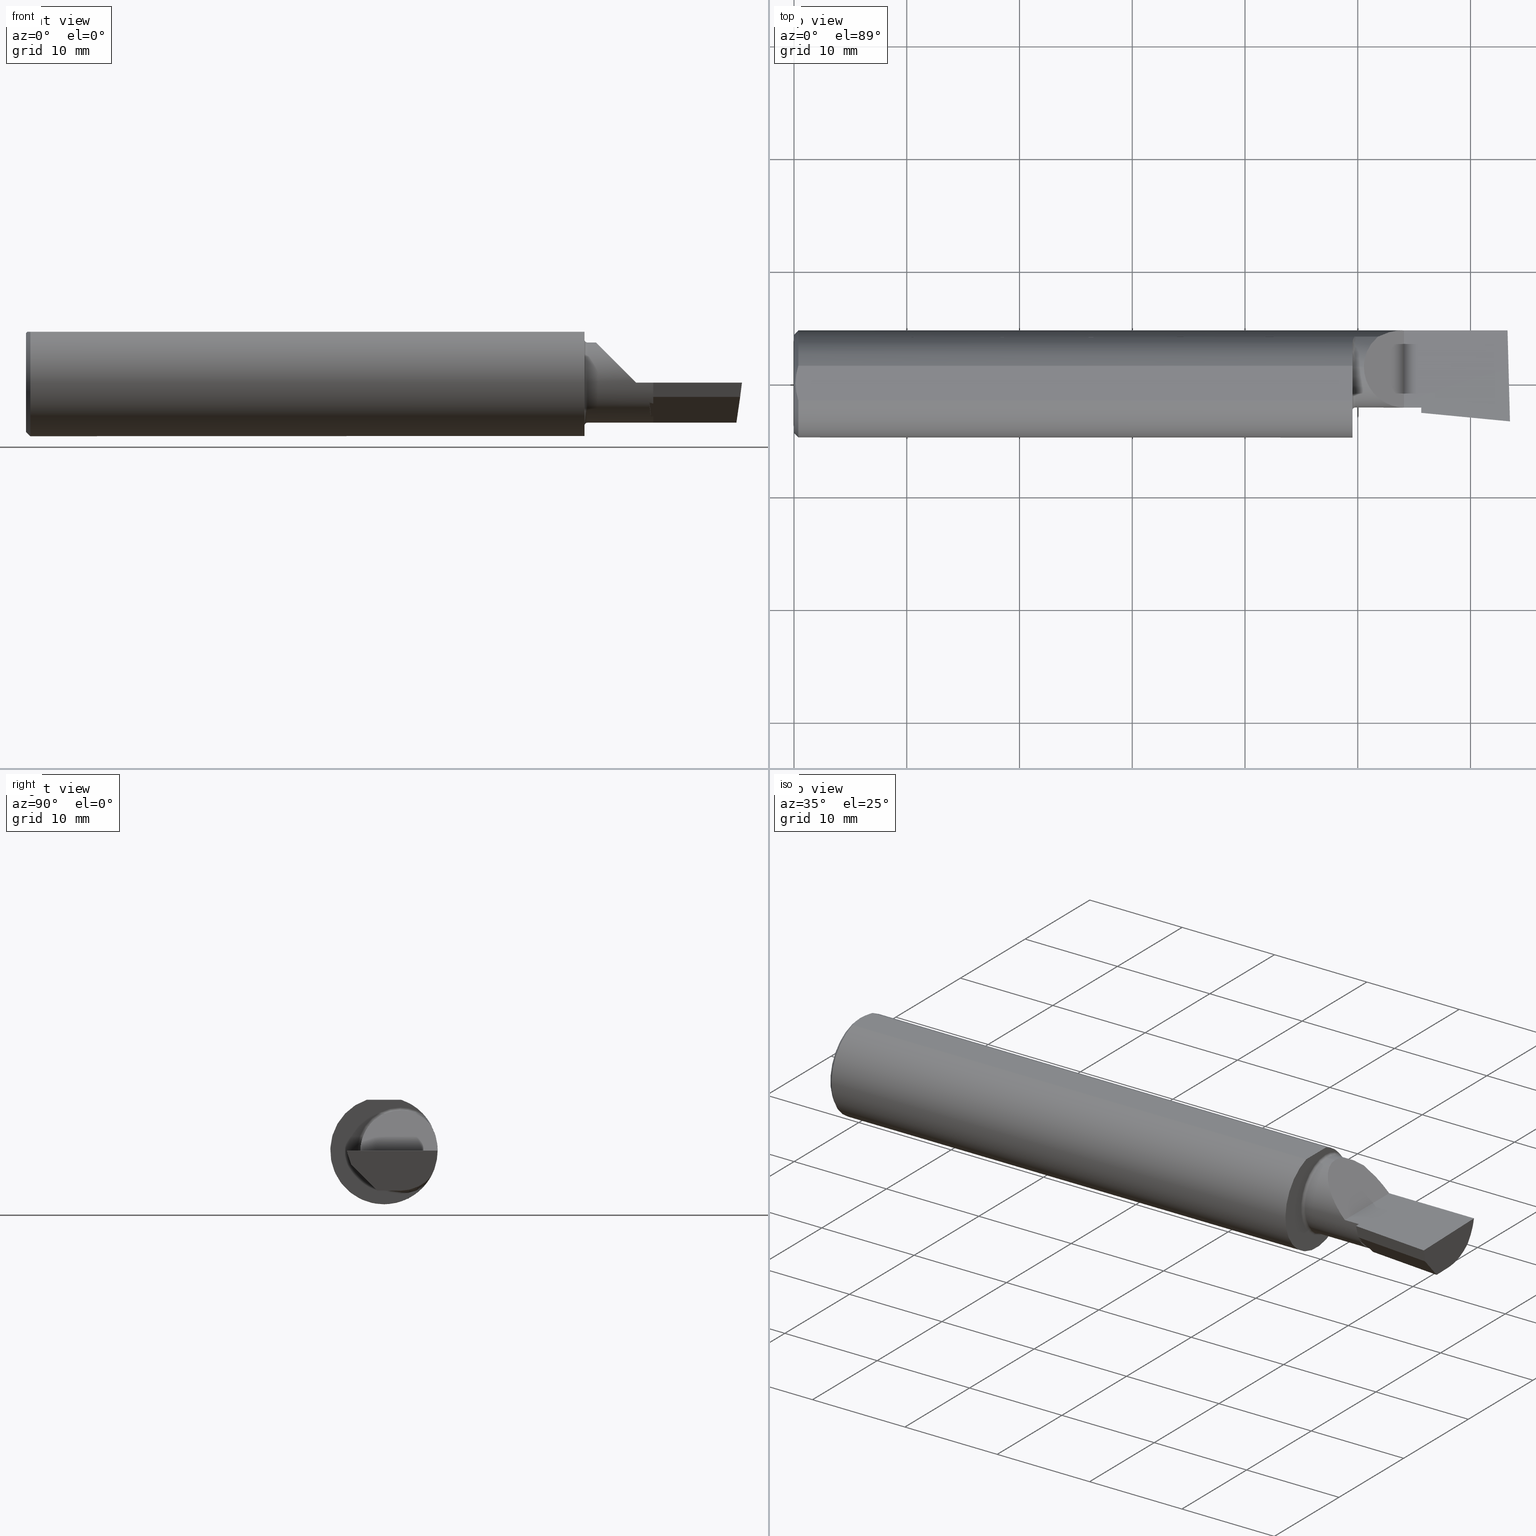
[diagram: canonical four-view strip — front | top / right | iso, engineering-drawing reading convention]
A machine part, canonical four-view strip (front | top / right | iso — engineering-drawing reading convention). The complete STEP part file that produces these views, byte-faithful:
ISO-10303-21;
HEADER;
FILE_DESCRIPTION (( 'STEP AP203' ),
    '1' );
FILE_NAME ('212091-LHB320500.STEP',
    '2024-08-27T20:28:41',
    ( '' ),
    ( '' ),
    'SwSTEP 2.0',
    'SolidWorks 2024',
    '' );
FILE_SCHEMA (( 'CONFIG_CONTROL_DESIGN' ));
ENDSEC;

DATA;
#1 = EDGE_CURVE ( 'NONE', #132, #534, #276, .T. ) ;
#2 = ORIENTED_EDGE ( 'NONE', *, *, #161, .F. ) ;
#3 = VECTOR ( 'NONE', #384, 39.37007874015748143 ) ;
#4 = PRODUCT_DEFINITION_FORMATION_WITH_SPECIFIED_SOURCE ( 'ANY', '', #110, .NOT_KNOWN. ) ;
#5 = CARTESIAN_POINT ( 'NONE',  ( 2.503195014871369306, -0.2499144076575001427, 1.702373413063153914E-16 ) ) ;
#6 = VERTEX_POINT ( 'NONE', #496 ) ;
#7 = CARTESIAN_POINT ( 'NONE',  ( 2.189999999999999947, 0.003938630626222059707, -0.1400500000000000078 ) ) ;
#8 = DIRECTION ( 'NONE',  ( -1.000000000000000000, -0.000000000000000000, -0.000000000000000000 ) ) ;
#9 = ORIENTED_EDGE ( 'NONE', *, *, #113, .T. ) ;
#10 = EDGE_CURVE ( 'NONE', #642, #12, #665, .T. ) ;
#11 = CARTESIAN_POINT ( 'NONE',  ( 2.177426863084049202, -0.06375161744379249928, -0.07025872252434531284 ) ) ;
#12 = VERTEX_POINT ( 'NONE', #395 ) ;
#13 = PLANE ( 'NONE',  #378 ) ;
#14 = AXIS2_PLACEMENT_3D ( 'NONE', #335, #610, #104 ) ;
#15 = LOCAL_TIME ( 13, 28, 41.00000000000000000, #618 ) ;
#16 = EDGE_LOOP ( 'NONE', ( #201, #483, #639, #33, #681 ) ) ;
#17 = VECTOR ( 'NONE', #690, 39.37007874015748854 ) ;
#18 = CARTESIAN_POINT ( 'NONE',  ( 0.01499999999999997863, -0.06039039658753695555, 0.1773499999999999799 ) ) ;
#19 = ADVANCED_FACE ( 'NONE', ( #438 ), #156, .F. ) ;
#20 = ORIENTED_EDGE ( 'NONE', *, *, #30, .T. ) ;
#21 = DIRECTION ( 'NONE',  ( -0.000000000000000000, 1.000000000000000000, -1.761988261316467526E-16 ) ) ;
#22 = EDGE_LOOP ( 'NONE', ( #77, #530, #256, #183, #250, #360 ) ) ;
#23 = CARTESIAN_POINT ( 'NONE',  ( 0.01499999999999999424, 0.000000000000000000, 0.000000000000000000 ) ) ;
#24 = DIRECTION ( 'NONE',  ( 0.000000000000000000, -0.7025528302622680021, 0.7116315905652844664 ) ) ;
#25 = ORIENTED_EDGE ( 'NONE', *, *, #720, .T. ) ;
#26 = FACE_OUTER_BOUND ( 'NONE', #134, .T. ) ;
#27 = CARTESIAN_POINT ( 'NONE',  ( 0.005896899252109526549, -0.02043863390046160924, 0.1773500000000000354 ) ) ;
#28 = VERTEX_POINT ( 'NONE', #47 ) ;
#29 = CARTESIAN_POINT ( 'NONE',  ( 1.960000000000000409, 0.1635956445993033692, 0.09130436773856144550 ) ) ;
#30 = EDGE_CURVE ( 'NONE', #642, #160, #669, .T. ) ;
#31 = CARTESIAN_POINT ( 'NONE',  ( 8.889029578031509911E-32, -0.08265000000000001512, 5.644462552563044730E-16 ) ) ;
#32 = CARTESIAN_POINT ( 'NONE',  ( 1.960000000000000409, 0.1635956445993032859, -0.09130436773856151489 ) ) ;
#33 = ORIENTED_EDGE ( 'NONE', *, *, #359, .T. ) ;
#34 = CALENDAR_DATE ( 2024, 27, 8 ) ;
#35 = CARTESIAN_POINT ( 'NONE',  ( 0.000000000000000000, 0.000000000000000000, 0.000000000000000000 ) ) ;
#36 = DIRECTION ( 'NONE',  ( 0.9953961983671787417, -0.09584575252022421721, -0.000000000000000000 ) ) ;
#37 = ORIENTED_EDGE ( 'NONE', *, *, #562, .T. ) ;
#38 = CLOSED_SHELL ( 'NONE', ( #507, #211, #725, #464, #708, #626, #88, #135, #361, #324, #218, #122, #490, #748, #48, #344, #198, #19, #683, #555, #684 ) ) ;
#39 = LINE ( 'NONE', #273, #244 ) ;
#40 = CARTESIAN_POINT ( 'NONE',  ( 2.478395815296170479, 0.05682123813157435865, -0.1400500000000000078 ) ) ;
#41 = DIRECTION ( 'NONE',  ( -1.000000000000000000, -0.000000000000000000, -0.000000000000000000 ) ) ;
#42 = VERTEX_POINT ( 'NONE', #753 ) ;
#43 = CALENDAR_DATE ( 2024, 27, 8 ) ;
#44 = VERTEX_POINT ( 'NONE', #166 ) ;
#45 = CARTESIAN_POINT ( 'NONE',  ( 0.005000000000000064289, 2.941982644279459108E-17, 0.1773499999999999799 ) ) ;
#46 = CARTESIAN_POINT ( 'NONE',  ( 1.960000000000000409, 0.1635956445993032859, -0.09130436773856151489 ) ) ;
#47 = CARTESIAN_POINT ( 'NONE',  ( 1.989949999999998775, 0.05739999999999997882, 0.1400500000000000078 ) ) ;
#48 = ADVANCED_FACE ( 'NONE', ( #280 ), #558, .F. ) ;
#49 = DATE_AND_TIME ( #43, #332 ) ;
#50 = CARTESIAN_POINT ( 'NONE',  ( 2.180141567848909112, -0.03555833050537432483, -0.1073493499420050956 ) ) ;
#51 = CONICAL_SURFACE ( 'NONE', #185, 0.1873499999999999888, 0.7853981633974602694 ) ;
#52 = AXIS2_PLACEMENT_3D ( 'NONE', #155, #567, #163 ) ;
#53 = VERTEX_POINT ( 'NONE', #262 ) ;
#54 = CARTESIAN_POINT ( 'NONE',  ( 2.187448432732871151, -0.01683441884804644240, -0.1187596472685085724 ) ) ;
#55 = CARTESIAN_POINT ( 'NONE',  ( 2.500000000000000000, -0.2500000000000000555, 1.707404996040164512E-16 ) ) ;
#56 = ORIENTED_EDGE ( 'NONE', *, *, #579, .T. ) ;
#57 = CALENDAR_DATE ( 2024, 27, 8 ) ;
#58 = AXIS2_PLACEMENT_3D ( 'NONE', #154, #504, #84 ) ;
#59 = CARTESIAN_POINT ( 'NONE',  ( 2.189999999999999947, -0.01748911258856174558, -0.1183453561222312378 ) ) ;
#60 = APPROVAL_PERSON_ORGANIZATION ( #609, #715, #666 ) ;
#61 = CARTESIAN_POINT ( 'NONE',  ( 2.487920531740588803, -0.09940957783652945579, -0.09495384310856869181 ) ) ;
#62 = EDGE_CURVE ( 'NONE', #12, #53, #693, .T. ) ;
#63 = ORIENTED_EDGE ( 'NONE', *, *, #637, .T. ) ;
#64 = EDGE_CURVE ( 'NONE', #563, #366, #629, .T. ) ;
#65 = CARTESIAN_POINT ( 'NONE',  ( 2.189999999999999947, 0.05739999999999996494, -0.1400500000000000078 ) ) ;
#66 = CARTESIAN_POINT ( 'NONE',  ( 2.500000000000000000, 0.05739999999999996494, -0.1400500000000000078 ) ) ;
#67 = ORIENTED_EDGE ( 'NONE', *, *, #430, .T. ) ;
#68 = CC_DESIGN_PERSON_AND_ORGANIZATION_ASSIGNMENT ( #698, #707, ( #423 ) ) ;
#69 = DIRECTION ( 'NONE',  ( -1.000000000000000000, -0.000000000000000000, -0.000000000000000000 ) ) ;
#70 = APPLICATION_CONTEXT ( 'configuration controlled 3d designs of mechanical parts and assemblies' ) ;
#71 = ORIENTED_EDGE ( 'NONE', *, *, #98, .F. ) ;
#72 = EDGE_CURVE ( 'NONE', #160, #172, #756, .T. ) ;
#73 =( BOUNDED_CURVE ( )  B_SPLINE_CURVE ( 3, ( #141, #372, #533, #314 ),
 .UNSPECIFIED., .F., .T. ) 
 B_SPLINE_CURVE_WITH_KNOTS ( ( 4, 4 ),
 ( 6.060671081087593670, 6.921325714778722826 ),
 .UNSPECIFIED. ) 
 CURVE ( )  GEOMETRIC_REPRESENTATION_ITEM ( )  RATIONAL_B_SPLINE_CURVE ( ( 1.000000000000000000, 0.9392195014330942948, 0.9392195014330942948, 1.000000000000000000 ) ) 
 REPRESENTATION_ITEM ( '' )  );
#74 = DIRECTION ( 'NONE',  ( 0.000000000000000000, 0.000000000000000000, 1.000000000000000000 ) ) ;
#75 = AXIS2_PLACEMENT_3D ( 'NONE', #549, #491, #387 ) ;
#76 = AXIS2_PLACEMENT_3D ( 'NONE', #202, #428, #358 ) ;
#77 = ORIENTED_EDGE ( 'NONE', *, *, #585, .T. ) ;
#78 = DIRECTION ( 'NONE',  ( -1.000000000000000000, -0.000000000000000000, -0.000000000000000000 ) ) ;
#79 = ORIENTED_EDGE ( 'NONE', *, *, #431, .T. ) ;
#80 = LINE ( 'NONE', #263, #682 ) ;
#81 = CARTESIAN_POINT ( 'NONE',  ( 0.01499999999999999424, 0.06039039658753699719, 0.1773499999999999799 ) ) ;
#82 = VERTEX_POINT ( 'NONE', #404 ) ;
#83 = DIRECTION ( 'NONE',  ( 1.000000000000000000, 0.000000000000000000, 0.000000000000000000 ) ) ;
#84 = DIRECTION ( 'NONE',  ( 0.000000000000000000, 0.000000000000000000, 1.000000000000000000 ) ) ;
#85 = AXIS2_PLACEMENT_3D ( 'NONE', #112, #705, #520 ) ;
#86 = ORIENTED_EDGE ( 'NONE', *, *, #64, .F. ) ;
#87 = VECTOR ( 'NONE', #126, 39.37007874015748143 ) ;
#88 = ADVANCED_FACE ( 'NONE', ( #232 ), #341, .F. ) ;
#89 = DIRECTION ( 'NONE',  ( 0.9927123040216839778, 0.02659410830637959702, -0.1175373763844856645 ) ) ;
#90 = LINE ( 'NONE', #31, #305 ) ;
#91 = B_SPLINE_CURVE_WITH_KNOTS ( 'NONE', 3,
 ( #32, #208, #224, #96, #100, #336, #719, #741, #429, #680, #322, #663 ),
 .UNSPECIFIED., .F., .F.,
 ( 4, 2, 2, 2, 2, 4 ),
 ( 1.968964099585697359E-07, 7.414172666647628012E-05, 0.0001480865569229939868, 0.0002959762174360398086, 0.0005917555384621325364, 0.001183314180514314848 ),
 .UNSPECIFIED. ) ;
#92 = ORIENTED_EDGE ( 'NONE', *, *, #637, .F. ) ;
#93 = PRODUCT_RELATED_PRODUCT_CATEGORY ( 'detail', '', ( #110 ) ) ;
#94 = LENGTH_MEASURE_WITH_UNIT ( LENGTH_MEASURE( 0.02539999999999999897 ), #214 );
#95 = FACE_OUTER_BOUND ( 'NONE', #101, .T. ) ;
#96 = CARTESIAN_POINT ( 'NONE',  ( 1.956977885846546750, 0.1625039841807087992, -0.09323648621225517907 ) ) ;
#97 = DIRECTION ( 'NONE',  ( -1.000000000000000000, 0.000000000000000000, -0.000000000000000000 ) ) ;
#98 = EDGE_CURVE ( 'NONE', #366, #82, #291, .T. ) ;
#99 = DIRECTION ( 'NONE',  ( -1.000000000000000000, -0.000000000000000000, -0.000000000000000000 ) ) ;
#100 = CARTESIAN_POINT ( 'NONE',  ( 1.956503643436637185, 0.1620795007490430650, -0.09397341491037281003 ) ) ;
#101 = EDGE_LOOP ( 'NONE', ( #124, #405, #67, #463 ) ) ;
#102 = CC_DESIGN_APPROVAL ( #754, ( #423 ) ) ;
#103 = EDGE_LOOP ( 'NONE', ( #696, #420, #471, #337, #578, #190 ) ) ;
#104 = DIRECTION ( 'NONE',  ( 0.000000000000000000, -1.000000000000000000, 1.761988261316467526E-16 ) ) ;
#105 = CARTESIAN_POINT ( 'NONE',  ( 0.000000000000000000, 0.000000000000000000, 0.000000000000000000 ) ) ;
#106 = ORIENTED_EDGE ( 'NONE', *, *, #697, .F. ) ;
#107 = APPROVAL_ROLE ( '' ) ;
#108 = VERTEX_POINT ( 'NONE', #700 ) ;
#109 = APPROVAL_STATUS ( 'not_yet_approved' ) ;
#110 = PRODUCT ( '212091-LHB320500', '212091-LHB320500', '', ( #743 ) ) ;
#111 = B_SPLINE_CURVE_WITH_KNOTS ( 'NONE', 3,
 ( #575, #229, #182, #171, #523, #297, #239, #289, #529, #462, #453, #467 ),
 .UNSPECIFIED., .F., .F.,
 ( 4, 2, 2, 2, 2, 4 ),
 ( 0.0009392928737449028100, 0.001524303482983961492, 0.001816808787603491158, 0.001963061439913260219, 0.002036187766068145184, 0.002109314092223030148 ),
 .UNSPECIFIED. ) ;
#112 = CARTESIAN_POINT ( 'NONE',  ( 1.960000000000000409, 0.05739999999999999963, -0.1500500000000000445 ) ) ;
#113 = EDGE_CURVE ( 'NONE', #651, #664, #111, .T. ) ;
#114 = CIRCLE ( 'NONE', #535, 0.1723499999999996424 ) ;
#115 = AXIS2_PLACEMENT_3D ( 'NONE', #561, #41, #745 ) ;
#116 = LINE ( 'NONE', #119, #235 ) ;
#117 = ORIENTED_EDGE ( 'NONE', *, *, #62, .T. ) ;
#118 = PERSON_AND_ORGANIZATION ( #699, #574 ) ;
#119 = CARTESIAN_POINT ( 'NONE',  ( 1.950000000000000178, 0.2373500000000000332, 0.1773499999999999521 ) ) ;
#120 = CARTESIAN_POINT ( 'NONE',  ( 2.184805551184139993, -0.01617630990044777867, -0.1191684915675323836 ) ) ;
#121 = CARTESIAN_POINT ( 'NONE',  ( 2.484210015596427734, 0.1792580844883771285, -0.06324101202936127653 ) ) ;
#122 = ADVANCED_FACE ( 'NONE', ( #645 ), #350, .F. ) ;
#123 = LINE ( 'NONE', #5, #400 ) ;
#124 = ORIENTED_EDGE ( 'NONE', *, *, #418, .F. ) ;
#125 = AXIS2_PLACEMENT_3D ( 'NONE', #604, #89, #644 ) ;
#126 = DIRECTION ( 'NONE',  ( 1.000000000000000000, 0.000000000000000000, 0.000000000000000000 ) ) ;
#127 = CARTESIAN_POINT ( 'NONE',  ( 1.950000000000000178, 0.05739999999999997882, 0.1500500000000000445 ) ) ;
#128 = CC_DESIGN_PERSON_AND_ORGANIZATION_ASSIGNMENT ( #702, #408, ( #4 ) ) ;
#129 = ORIENTED_EDGE ( 'NONE', *, *, #640, .T. ) ;
#130 =( BOUNDED_CURVE ( )  B_SPLINE_CURVE ( 3, ( #362, #241, #647, #252 ),
 .UNSPECIFIED., .F., .T. ) 
 B_SPLINE_CURVE_WITH_KNOTS ( ( 4, 4 ),
 ( 5.422530673488455299, 6.283185307179586232 ),
 .UNSPECIFIED. ) 
 CURVE ( )  GEOMETRIC_REPRESENTATION_ITEM ( )  RATIONAL_B_SPLINE_CURVE ( ( 1.000000000000000000, 0.9392195014330939618, 0.9392195014330939618, 1.000000000000000000 ) ) 
 REPRESENTATION_ITEM ( '' )  );
#131 = DIRECTION ( 'NONE',  ( -1.000000000000000000, -0.000000000000000000, -0.000000000000000000 ) ) ;
#132 = VERTEX_POINT ( 'NONE', #178 ) ;
#133 = DIRECTION ( 'NONE',  ( 0.09140971883575738088, 0.9493262270931225322, 0.3007057995042746179 ) ) ;
#134 = EDGE_LOOP ( 'NONE', ( #460, #253, #653, #20, #225, #363, #308, #746, #586, #9, #506, #678, #401 ) ) ;
#135 = ADVANCED_FACE ( 'NONE', ( #689 ), #516, .T. ) ;
#136 = DIRECTION ( 'NONE',  ( 0.000000000000000000, -0.7025528302622680021, 0.7116315905652844664 ) ) ;
#137 = VECTOR ( 'NONE', #419, 39.37007874015748854 ) ;
#138 = AXIS2_PLACEMENT_3D ( 'NONE', #140, #251, #466 ) ;
#139 = ORIENTED_EDGE ( 'NONE', *, *, #72, .F. ) ;
#140 = CARTESIAN_POINT ( 'NONE',  ( 1.960000000000000409, 0.05739999999999997882, 0.000000000000000000 ) ) ;
#141 = CARTESIAN_POINT ( 'NONE',  ( 2.478380310647189777, 0.05739999999999996494, -0.1400500000000000078 ) ) ;
#142 = VERTEX_POINT ( 'NONE', #127 ) ;
#143 = DIRECTION ( 'NONE',  ( 0.000000000000000000, 0.000000000000000000, 1.000000000000000000 ) ) ;
#144 = DIRECTION ( 'NONE',  ( -1.000000000000000000, -0.000000000000000000, -0.000000000000000000 ) ) ;
#145 = EDGE_CURVE ( 'NONE', #591, #304, #703, .T. ) ;
#146 = ORIENTED_EDGE ( 'NONE', *, *, #614, .T. ) ;
#147 = CARTESIAN_POINT ( 'NONE',  ( 1.950000000000000178, 0.1383256097560974507, -0.1263568288047932642 ) ) ;
#148 = CARTESIAN_POINT ( 'NONE',  ( 0.01499999999999999424, 0.000000000000000000, -0.1873499999999999888 ) ) ;
#149 = DIRECTION ( 'NONE',  ( 0.000000000000000000, -0.7025528302622680021, 0.7116315905652844664 ) ) ;
#150 = AXIS2_PLACEMENT_3D ( 'NONE', #426, #416, #24 ) ;
#151 = DIRECTION ( 'NONE',  ( 0.000000000000000000, -1.438723400918613551E-16, -1.000000000000000000 ) ) ;
#152 =( GEOMETRIC_REPRESENTATION_CONTEXT ( 3 ) GLOBAL_UNCERTAINTY_ASSIGNED_CONTEXT ( ( #473 ) ) GLOBAL_UNIT_ASSIGNED_CONTEXT ( ( #444, #386, #267 ) ) REPRESENTATION_CONTEXT ( 'NONE', 'WORKASPACE' ) );
#153 = CIRCLE ( 'NONE', #576, 0.1500500000000000445 ) ;
#154 = CARTESIAN_POINT ( 'NONE',  ( 0.000000000000000000, 0.05739999999999997882, 0.000000000000000000 ) ) ;
#155 = CARTESIAN_POINT ( 'NONE',  ( 1.960000000000000409, 0.05739999999999997882, 0.000000000000000000 ) ) ;
#156 = PLANE ( 'NONE',  #654 ) ;
#157 = EDGE_CURVE ( 'NONE', #6, #563, #123, .T. ) ;
#158 = PERSON_AND_ORGANIZATION ( #699, #574 ) ;
#159 = CARTESIAN_POINT ( 'NONE',  ( 2.129999999999999893, -0.2500000000000000555, 2.290089514405551589E-16 ) ) ;
#160 = VERTEX_POINT ( 'NONE', #455 ) ;
#161 = EDGE_CURVE ( 'NONE', #304, #731, #309, .T. ) ;
#162 = LINE ( 'NONE', #40, #3 ) ;
#163 = DIRECTION ( 'NONE',  ( 0.000000000000000000, 0.000000000000000000, 1.000000000000000000 ) ) ;
#164 = DIRECTION ( 'NONE',  ( -1.000000000000000000, -0.000000000000000000, -0.000000000000000000 ) ) ;
#165 = APPLICATION_PROTOCOL_DEFINITION ( 'international standard', 'config_control_design', 1994, #167 ) ;
#166 = CARTESIAN_POINT ( 'NONE',  ( 2.129999999999999893, 0.1873499999999998222, 2.290089514405551589E-16 ) ) ;
#167 = APPLICATION_CONTEXT ( 'configuration controlled 3d designs of mechanical parts and assemblies' ) ;
#168 = CARTESIAN_POINT ( 'NONE',  ( 0.01499999999999999424, 0.06039039658753699719, 0.1773499999999999799 ) ) ;
#169 = DIRECTION ( 'NONE',  ( -1.000000000000000000, -0.000000000000000000, -0.000000000000000000 ) ) ;
#170 = EDGE_CURVE ( 'NONE', #160, #415, #116, .T. ) ;
#171 = CARTESIAN_POINT ( 'NONE',  ( 1.952291668372491351, 0.1548472237252446204, 0.1055305370847125779 ) ) ;
#172 = VERTEX_POINT ( 'NONE', #18 ) ;
#173 = VECTOR ( 'NONE', #531, 39.37007874015748143 ) ;
#174 = CC_DESIGN_APPROVAL ( #715, ( #4 ) ) ;
#175 = DIRECTION ( 'NONE',  ( 0.000000000000000000, 0.000000000000000000, -1.000000000000000000 ) ) ;
#176 = EDGE_LOOP ( 'NONE', ( #248, #425, #146, #624, #492, #412 ) ) ;
#177 = APPROVAL_DATE_TIME ( #402, #754 ) ;
#178 = CARTESIAN_POINT ( 'NONE',  ( 2.481306893948618697, 0.1635956445993030917, -0.09130436773856172306 ) ) ;
#179 = ORIENTED_EDGE ( 'NONE', *, *, #189, .F. ) ;
#180 = PERSON_AND_ORGANIZATION_ROLE ( 'creator' ) ;
#181 = CARTESIAN_POINT ( 'NONE',  ( 2.478380310647189777, 0.05739999999999996494, -0.1400500000000000078 ) ) ;
#182 = CARTESIAN_POINT ( 'NONE',  ( 1.950530357231195833, 0.1482623167742069259, 0.1147852156680472524 ) ) ;
#183 = ORIENTED_EDGE ( 'NONE', *, *, #98, .T. ) ;
#184 = VECTOR ( 'NONE', #8, 39.37007874015748143 ) ;
#185 = AXIS2_PLACEMENT_3D ( 'NONE', #23, #83, #317 ) ;
#186 = DIRECTION ( 'NONE',  ( 1.000000000000000000, 0.000000000000000000, 0.000000000000000000 ) ) ;
#187 = ORIENTED_EDGE ( 'NONE', *, *, #599, .F. ) ;
#188 = DIRECTION ( 'NONE',  ( 0.000000000000000000, 0.000000000000000000, 1.000000000000000000 ) ) ;
#189 = EDGE_CURVE ( 'NONE', #664, #509, #592, .T. ) ;
#190 = ORIENTED_EDGE ( 'NONE', *, *, #449, .T. ) ;
#191 = LINE ( 'NONE', #652, #711 ) ;
#192 = ORIENTED_EDGE ( 'NONE', *, *, #430, .F. ) ;
#193 = CYLINDRICAL_SURFACE ( 'NONE', #526, 0.1400500000000000078 ) ;
#194 = CARTESIAN_POINT ( 'NONE',  ( 2.075000000000000178, 0.1635956445993030917, 0.09130436773856172306 ) ) ;
#195 = LOCAL_TIME ( 13, 28, 41.00000000000000000, #293 ) ;
#196 = VERTEX_POINT ( 'NONE', #722 ) ;
#197 = FACE_OUTER_BOUND ( 'NONE', #16, .T. ) ;
#198 = ADVANCED_FACE ( 'NONE', ( #310 ), #459, .F. ) ;
#199 = EDGE_CURVE ( 'NONE', #648, #132, #73, .T. ) ;
#200 = PLANE ( 'NONE',  #150 ) ;
#201 = ORIENTED_EDGE ( 'NONE', *, *, #315, .F. ) ;
#202 = CARTESIAN_POINT ( 'NONE',  ( 1.960000000000000409, 0.05739999999999997882, 0.000000000000000000 ) ) ;
#203 = CC_DESIGN_PERSON_AND_ORGANIZATION_ASSIGNMENT ( #628, #180, ( #4 ) ) ;
#204 = CARTESIAN_POINT ( 'NONE',  ( 2.097861799102314961, 0.1873499999999999055, 0.03213820089768522348 ) ) ;
#205 = EDGE_LOOP ( 'NONE', ( #323, #477, #63, #617 ) ) ;
#206 = CYLINDRICAL_SURFACE ( 'NONE', #515, 0.1873499999999999888 ) ;
#207 = DIRECTION ( 'NONE',  ( 0.000000000000000000, 0.000000000000000000, 1.000000000000000000 ) ) ;
#208 = CARTESIAN_POINT ( 'NONE',  ( 1.959014641741962715, 0.1635956445993033692, -0.09130436773856129284 ) ) ;
#209 = VECTOR ( 'NONE', #668, 39.37007874015748143 ) ;
#210 = ORIENTED_EDGE ( 'NONE', *, *, #371, .F. ) ;
#211 = ADVANCED_FACE ( 'NONE', ( #486 ), #636, .F. ) ;
#212 = CIRCLE ( 'NONE', #655, 0.1500500000000000445 ) ;
#213 = AXIS2_PLACEMENT_3D ( 'NONE', #55, #411, #228 ) ;
#214 =( LENGTH_UNIT ( ) NAMED_UNIT ( * ) SI_UNIT ( $, .METRE. ) );
#215 = CARTESIAN_POINT ( 'NONE',  ( 2.047960609410351296, -0.08264999999999984859, 0.08203939058964823672 ) ) ;
#216 = CARTESIAN_POINT ( 'NONE',  ( 2.500000000000000444, -0.1306500000000002382, 5.634436486932542518E-16 ) ) ;
#217 = ORIENTED_EDGE ( 'NONE', *, *, #627, .F. ) ;
#218 = ADVANCED_FACE ( 'NONE', ( #727 ), #200, .F. ) ;
#219 = DIRECTION ( 'NONE',  ( 0.000000000000000000, 0.000000000000000000, -1.000000000000000000 ) ) ;
#220 = LINE ( 'NONE', #445, #394 ) ;
#221 = CARTESIAN_POINT ( 'NONE',  ( 1.950000000000000178, 0.05739999999999997882, 0.000000000000000000 ) ) ;
#222 = DIRECTION ( 'NONE',  ( 1.000000000000000000, 0.000000000000000000, 0.000000000000000000 ) ) ;
#223 = PLANE ( 'NONE',  #75 ) ;
#224 = CARTESIAN_POINT ( 'NONE',  ( 1.958200855161538634, 0.1632467142437138141, -0.09192985110639159685 ) ) ;
#225 = ORIENTED_EDGE ( 'NONE', *, *, #72, .T. ) ;
#226 = CONICAL_SURFACE ( 'NONE', #236, 0.1873499999999999888, 0.7853981633974602694 ) ;
#227 = CARTESIAN_POINT ( 'NONE',  ( 0.000000000000000000, 0.000000000000000000, 0.000000000000000000 ) ) ;
#228 = DIRECTION ( 'NONE',  ( -1.000000000000000000, 0.000000000000000000, 1.574823022609152926E-16 ) ) ;
#229 = CARTESIAN_POINT ( 'NONE',  ( 1.950000000000000844, 0.1434410963562315899, 0.1207567927018308035 ) ) ;
#230 = EDGE_LOOP ( 'NONE', ( #389, #56, #319, #233, #660, #427, #240, #192, #385, #106 ) ) ;
#231 = SECURITY_CLASSIFICATION_LEVEL ( 'unclassified' ) ;
#232 = FACE_OUTER_BOUND ( 'NONE', #103, .T. ) ;
#233 = ORIENTED_EDGE ( 'NONE', *, *, #145, .T. ) ;
#234 = EDGE_CURVE ( 'NONE', #391, #172, #724, .T. ) ;
#235 = VECTOR ( 'NONE', #584, 39.37007874015748143 ) ;
#236 = AXIS2_PLACEMENT_3D ( 'NONE', #448, #222, #219 ) ;
#237 = ORIENTED_EDGE ( 'NONE', *, *, #547, .F. ) ;
#238 = CARTESIAN_POINT ( 'NONE',  ( 2.481306893948618697, 0.1635956445993030917, -0.09130436773856172306 ) ) ;
#239 = CARTESIAN_POINT ( 'NONE',  ( 1.955270962286581815, 0.1607994114084985160, 0.09615890281982612808 ) ) ;
#240 = ORIENTED_EDGE ( 'NONE', *, *, #367, .F. ) ;
#241 = CARTESIAN_POINT ( 'NONE',  ( 2.007250049735287867, 0.1365595166907238311, 0.1227499502647106666 ) ) ;
#242 = EDGE_LOOP ( 'NONE', ( #139, #646, #447, #487, #457 ) ) ;
#243 = AXIS2_PLACEMENT_3D ( 'NONE', #590, #69, #717 ) ;
#244 = VECTOR ( 'NONE', #572, 39.37007874015748143 ) ;
#245 = EDGE_CURVE ( 'NONE', #407, #742, #613, .T. ) ;
#246 = CARTESIAN_POINT ( 'NONE',  ( 2.175518747519191720, -0.08356815525963089131, -0.04999999999999982236 ) ) ;
#247 = AXIS2_PLACEMENT_3D ( 'NONE', #539, #368, #476 ) ;
#248 = ORIENTED_EDGE ( 'NONE', *, *, #10, .T. ) ;
#249 = CARTESIAN_POINT ( 'NONE',  ( 1.950000000000000178, 0.000000000000000000, 0.000000000000000000 ) ) ;
#250 = ORIENTED_EDGE ( 'NONE', *, *, #348, .T. ) ;
#251 = DIRECTION ( 'NONE',  ( -1.000000000000000000, -0.000000000000000000, -0.000000000000000000 ) ) ;
#252 = CARTESIAN_POINT ( 'NONE',  ( 1.989949999999998775, 0.05739999999999997882, 0.1400500000000000078 ) ) ;
#253 = ORIENTED_EDGE ( 'NONE', *, *, #1, .T. ) ;
#254 = LINE ( 'NONE', #320, #87 ) ;
#255 = CARTESIAN_POINT ( 'NONE',  ( 0.005000000000000064289, 2.941982644279459108E-17, 0.1773499999999999799 ) ) ;
#256 = ORIENTED_EDGE ( 'NONE', *, *, #64, .T. ) ;
#257 =( BOUNDED_CURVE ( )  B_SPLINE_CURVE ( 3, ( #349, #54, #120, #352 ),
 .UNSPECIFIED., .F., .T. ) 
 B_SPLINE_CURVE_WITH_KNOTS ( ( 4, 4 ),
 ( 3.369220829256468708, 3.385816822084442013 ),
 .UNSPECIFIED. ) 
 CURVE ( )  GEOMETRIC_REPRESENTATION_ITEM ( )  RATIONAL_B_SPLINE_CURVE ( ( 1.000000000000000000, 0.9999770478835389165, 0.9999770478835389165, 1.000000000000000000 ) ) 
 REPRESENTATION_ITEM ( '' )  );
#258 = CC_DESIGN_PERSON_AND_ORGANIZATION_ASSIGNMENT ( #569, #564, ( #538 ) ) ;
#259 = DIMENSIONAL_EXPONENTS ( 1.000000000000000000, 0.000000000000000000, 0.000000000000000000, 0.000000000000000000, 0.000000000000000000, 0.000000000000000000, 0.000000000000000000 ) ;
#260 = CARTESIAN_POINT ( 'NONE',  ( 0.000000000000000000, 0.000000000000000000, 0.000000000000000000 ) ) ;
#261 = FACE_OUTER_BOUND ( 'NONE', #205, .T. ) ;
#262 = CARTESIAN_POINT ( 'NONE',  ( 1.960000000000000409, 0.05739999999999999963, -0.1400500000000000633 ) ) ;
#263 = CARTESIAN_POINT ( 'NONE',  ( 0.000000000000000000, 0.05739999999999997882, 0.1400500000000000078 ) ) ;
#264 = LINE ( 'NONE', #441, #594 ) ;
#265 = PLANE ( 'NONE',  #738 ) ;
#266 = ORIENTED_EDGE ( 'NONE', *, *, #614, .F. ) ;
#267 =( NAMED_UNIT ( * ) SI_UNIT ( $, .STERADIAN. ) SOLID_ANGLE_UNIT ( ) );
#268 = CARTESIAN_POINT ( 'NONE',  ( 1.989949999999998775, -0.02463939058964791096, 0.1400500000000000356 ) ) ;
#269 = LINE ( 'NONE', #622, #270 ) ;
#270 = VECTOR ( 'NONE', #495, 39.37007874015748143 ) ;
#271 = VERTEX_POINT ( 'NONE', #542 ) ;
#272 = APPROVAL_PERSON_ORGANIZATION ( #118, #754, #454 ) ;
#273 = CARTESIAN_POINT ( 'NONE',  ( 0.000000000000000000, 0.06039039658753699719, 0.1773499999999999799 ) ) ;
#274 = CARTESIAN_POINT ( 'NONE',  ( 2.511386526799095353, -0.1317463978277607084, 1.689473231489393182E-16 ) ) ;
#275 = DIRECTION ( 'NONE',  ( 1.000000000000000000, 0.000000000000000000, 0.000000000000000000 ) ) ;
#276 = LINE ( 'NONE', #451, #537 ) ;
#277 = DATE_TIME_ROLE ( 'creation_date' ) ;
#278 = ORIENTED_EDGE ( 'NONE', *, *, #517, .T. ) ;
#279 = CARTESIAN_POINT ( 'NONE',  ( 1.950000000000000178, 0.05739999999999997882, 0.000000000000000000 ) ) ;
#280 = FACE_OUTER_BOUND ( 'NONE', #242, .T. ) ;
#281 = EDGE_CURVE ( 'NONE', #415, #651, #307, .T. ) ;
#282 = APPROVAL_STATUS ( 'not_yet_approved' ) ;
#283 = CARTESIAN_POINT ( 'NONE',  ( 2.178560885666600999, -0.05197434262614716166, -0.09056703218288446322 ) ) ;
#284 = AXIS2_PLACEMENT_3D ( 'NONE', #327, #432, #686 ) ;
#285 = VECTOR ( 'NONE', #388, 39.37007874015748143 ) ;
#286 = CARTESIAN_POINT ( 'NONE',  ( 2.189999999999999947, -0.1108003950587631986, 0.000000000000000000 ) ) ;
#287 = DATE_AND_TIME ( #527, #195 ) ;
#288 = EDGE_CURVE ( 'NONE', #648, #42, #365, .T. ) ;
#289 = CARTESIAN_POINT ( 'NONE',  ( 1.956530533518344495, 0.1621041320318384327, 0.09393089788995130640 ) ) ;
#290 = ORIENTED_EDGE ( 'NONE', *, *, #697, .T. ) ;
#291 = LINE ( 'NONE', #458, #434 ) ;
#292 = ORIENTED_EDGE ( 'NONE', *, *, #431, .F. ) ;
#293 = COORDINATED_UNIVERSAL_TIME_OFFSET ( 8, 0, .BEHIND. ) ;
#294 = TOROIDAL_SURFACE ( 'NONE', #52, 0.1500500000000000445, 0.01000000000000008174 ) ;
#295 = CIRCLE ( 'NONE', #138, 0.1400500000000000356 ) ;
#296 = LINE ( 'NONE', #65, #357 ) ;
#297 = CARTESIAN_POINT ( 'NONE',  ( 1.954651161669207271, 0.1598575446545094647, 0.09771880834312045294 ) ) ;
#298 = ORIENTED_EDGE ( 'NONE', *, *, #288, .T. ) ;
#299 = CARTESIAN_POINT ( 'NONE',  ( 2.487675818857995935, 0.1873500000000000443, -0.03213820089768496674 ) ) ;
#300 = LINE ( 'NONE', #650, #173 ) ;
#301 = EDGE_CURVE ( 'NONE', #591, #304, #300, .T. ) ;
#302 = EDGE_CURVE ( 'NONE', #509, #28, #130, .T. ) ;
#303 = FACE_OUTER_BOUND ( 'NONE', #565, .T. ) ;
#304 = VERTEX_POINT ( 'NONE', #11 ) ;
#305 = VECTOR ( 'NONE', #566, 39.37007874015748143 ) ;
#306 = DIRECTION ( 'NONE',  ( 0.000000000000000000, -0.3019700370129925204, 0.9533174165755977647 ) ) ;
#307 = CIRCLE ( 'NONE', #740, 0.1873499999999999888 ) ;
#308 = ORIENTED_EDGE ( 'NONE', *, *, #359, .F. ) ;
#309 =( BOUNDED_CURVE ( )  B_SPLINE_CURVE ( 3, ( #346, #406, #354, #577 ),
 .UNSPECIFIED., .F., .T. ) 
 B_SPLINE_CURVE_WITH_KNOTS ( ( 4, 4 ),
 ( 2.888141059890074303, 2.913964477923117968 ),
 .UNSPECIFIED. ) 
 CURVE ( )  GEOMETRIC_REPRESENTATION_ITEM ( )  RATIONAL_B_SPLINE_CURVE ( ( 1.000000000000000000, 0.9999444300287800846, 0.9999444300287800846, 1.000000000000000000 ) ) 
 REPRESENTATION_ITEM ( '' )  );
#310 = FACE_OUTER_BOUND ( 'NONE', #316, .T. ) ;
#311 = EDGE_CURVE ( 'NONE', #532, #196, #470, .T. ) ;
#312 = ORIENTED_EDGE ( 'NONE', *, *, #113, .F. ) ;
#313 = FACE_OUTER_BOUND ( 'NONE', #22, .T. ) ;
#314 = CARTESIAN_POINT ( 'NONE',  ( 2.481306893948618697, 0.1635956445993030917, -0.09130436773856172306 ) ) ;
#315 = EDGE_CURVE ( 'NONE', #271, #502, #559, .T. ) ;
#316 = EDGE_LOOP ( 'NONE', ( #608, #356, #237, #25 ) ) ;
#317 = DIRECTION ( 'NONE',  ( 0.000000000000000000, 0.000000000000000000, -1.000000000000000000 ) ) ;
#318 = MANIFOLD_SOLID_BREP ( 'Extrude7', #38 ) ;
#319 = ORIENTED_EDGE ( 'NONE', *, *, #489, .T. ) ;
#320 = CARTESIAN_POINT ( 'NONE',  ( 8.889029578031509911E-32, 0.1873499999999999610, 5.644462552563044730E-16 ) ) ;
#321 = CARTESIAN_POINT ( 'NONE',  ( 0.009318557230853338064, -0.04061090184993773611, 0.1773500000000000354 ) ) ;
#322 = CARTESIAN_POINT ( 'NONE',  ( 1.950000000000000844, 0.1434457138613162153, -0.1207517378170854805 ) ) ;
#323 = ORIENTED_EDGE ( 'NONE', *, *, #348, .F. ) ;
#324 = ADVANCED_FACE ( 'NONE', ( #303 ), #13, .F. ) ;
#325 = DIRECTION ( 'NONE',  ( 0.000000000000000000, 0.000000000000000000, 1.000000000000000000 ) ) ;
#326 = CARTESIAN_POINT ( 'NONE',  ( 2.188704977734795776, 0.05337608151953533026, -0.1900000000000009182 ) ) ;
#327 = CARTESIAN_POINT ( 'NONE',  ( 1.950000000000000178, 0.000000000000000000, 0.000000000000000000 ) ) ;
#328 = CARTESIAN_POINT ( 'NONE',  ( 0.005000000000000066891, -0.01026662907944657019, 0.1773499999999999521 ) ) ;
#329 = FACE_OUTER_BOUND ( 'NONE', #347, .T. ) ;
#330 = AXIS2_PLACEMENT_3D ( 'NONE', #286, #580, #175 ) ;
#331 = EDGE_LOOP ( 'NONE', ( #187, #278, #619, #376 ) ) ;
#332 = LOCAL_TIME ( 13, 28, 41.00000000000000000, #433 ) ;
#333 = APPROVAL_DATE_TIME ( #339, #469 ) ;
#334 = ORIENTED_EDGE ( 'NONE', *, *, #517, .F. ) ;
#335 = CARTESIAN_POINT ( 'NONE',  ( 2.500000000000000000, 0.05739999999999996494, -0.1400500000000000078 ) ) ;
#336 = CARTESIAN_POINT ( 'NONE',  ( 1.955249642630818352, 0.1607705839484634136, -0.09620717711675548511 ) ) ;
#337 = ORIENTED_EDGE ( 'NONE', *, *, #367, .T. ) ;
#338 = EDGE_CURVE ( 'NONE', #713, #701, #191, .T. ) ;
#339 = DATE_AND_TIME ( #687, #15 ) ;
#340 = ORIENTED_EDGE ( 'NONE', *, *, #234, .T. ) ;
#341 = PLANE ( 'NONE',  #213 ) ;
#342 = AXIS2_PLACEMENT_3D ( 'NONE', #510, #99, #207 ) ;
#343 = AXIS2_PLACEMENT_3D ( 'NONE', #601, #353, #583 ) ;
#344 = ADVANCED_FACE ( 'NONE', ( #95 ), #223, .F. ) ;
#345 = AXIS2_PLACEMENT_3D ( 'NONE', #396, #151, #625 ) ;
#346 = CARTESIAN_POINT ( 'NONE',  ( 2.177426863084049202, -0.06375161744379249928, -0.07025872252434531284 ) ) ;
#347 = EDGE_LOOP ( 'NONE', ( #706, #635 ) ) ;
#348 = EDGE_CURVE ( 'NONE', #82, #648, #162, .T. ) ;
#349 = CARTESIAN_POINT ( 'NONE',  ( 2.189999999999999947, -0.01748911258856174558, -0.1183453561222312378 ) ) ;
#350 = PLANE ( 'NONE',  #330 ) ;
#351 = ORIENTED_EDGE ( 'NONE', *, *, #640, .F. ) ;
#352 = CARTESIAN_POINT ( 'NONE',  ( 2.182071537332980427, -0.01551483106074535816, -0.1195718608677767553 ) ) ;
#353 = DIRECTION ( 'NONE',  ( -1.000000000000000000, -0.000000000000000000, -0.000000000000000000 ) ) ;
#354 = CARTESIAN_POINT ( 'NONE',  ( 2.186029688399880211, -0.06252862236813255814, -0.07233658413215687810 ) ) ;
#355 = B_SPLINE_CURVE_WITH_KNOTS ( 'NONE', 3,
 ( #435, #552, #321, #27, #328, #45 ),
 .UNSPECIFIED., .F., .F.,
 ( 4, 2, 4 ),
 ( 0.001920996734031360986, 0.002696206145936997766, 0.003471415557842634329 ),
 .UNSPECIFIED. ) ;
#356 = ORIENTED_EDGE ( 'NONE', *, *, #10, .F. ) ;
#357 = VECTOR ( 'NONE', #21, 39.37007874015748143 ) ;
#358 = DIRECTION ( 'NONE',  ( 0.000000000000000000, 0.000000000000000000, 1.000000000000000000 ) ) ;
#359 = EDGE_CURVE ( 'NONE', #742, #391, #573, .T. ) ;
#360 = ORIENTED_EDGE ( 'NONE', *, *, #199, .T. ) ;
#361 = ADVANCED_FACE ( 'NONE', ( #261 ), #621, .F. ) ;
#362 = CARTESIAN_POINT ( 'NONE',  ( 2.038695632261438018, 0.1635956445993032582, 0.09130436773856147326 ) ) ;
#363 = ORIENTED_EDGE ( 'NONE', *, *, #234, .F. ) ;
#364 = ADVANCED_BREP_SHAPE_REPRESENTATION ( '212091-LHB320500', ( #318, #667 ), #152 ) ;
#365 = LINE ( 'NONE', #66, #514 ) ;
#366 = VERTEX_POINT ( 'NONE', #556 ) ;
#367 = EDGE_CURVE ( 'NONE', #554, #543, #90, .T. ) ;
#368 = DIRECTION ( 'NONE',  ( -1.000000000000000000, -0.000000000000000000, -0.000000000000000000 ) ) ;
#369 = ORIENTED_EDGE ( 'NONE', *, *, #338, .T. ) ;
#370 = CARTESIAN_POINT ( 'NONE',  ( 2.492051758343555523, -0.02514564569107190575, -0.1400500000000000078 ) ) ;
#371 = EDGE_CURVE ( 'NONE', #502, #271, #114, .T. ) ;
#372 = CARTESIAN_POINT ( 'NONE',  ( 2.477269351521856677, 0.09887019258091184204, -0.1400500000000000356 ) ) ;
#373 = ORIENTED_EDGE ( 'NONE', *, *, #338, .F. ) ;
#374 = DIRECTION ( 'NONE',  ( 0.000000000000000000, 0.000000000000000000, -1.000000000000000000 ) ) ;
#375 = DIRECTION ( 'NONE',  ( 0.7071067811865390240, 8.659560562355036396E-17, 0.7071067811865560104 ) ) ;
#376 = ORIENTED_EDGE ( 'NONE', *, *, #503, .F. ) ;
#377 = CARTESIAN_POINT ( 'NONE',  ( 2.189999999999999947, 0.05739999999999997882, 0.000000000000000000 ) ) ;
#378 = AXIS2_PLACEMENT_3D ( 'NONE', #246, #133, #306 ) ;
#379 = DIRECTION ( 'NONE',  ( 0.000000000000000000, -1.000000000000000000, 0.000000000000000000 ) ) ;
#380 = DIRECTION ( 'NONE',  ( 0.000000000000000000, 0.000000000000000000, 1.000000000000000000 ) ) ;
#381 = VECTOR ( 'NONE', #421, 39.37007874015748143 ) ;
#382 = DIRECTION ( 'NONE',  ( 0.000000000000000000, 0.000000000000000000, 1.000000000000000000 ) ) ;
#383 = AXIS2_PLACEMENT_3D ( 'NONE', #659, #144, #588 ) ;
#384 = DIRECTION ( 'NONE',  ( -0.02677973311238984050, 0.9996413586354002678, -1.761661302186973806E-16 ) ) ;
#385 = ORIENTED_EDGE ( 'NONE', *, *, #627, .T. ) ;
#386 =( NAMED_UNIT ( * ) PLANE_ANGLE_UNIT ( ) SI_UNIT ( $, .RADIAN. ) );
#387 = DIRECTION ( 'NONE',  ( -0.7071067811865516806, 0.000000000000000000, 0.7071067811865432429 ) ) ;
#388 = DIRECTION ( 'NONE',  ( -1.000000000000000000, -0.000000000000000000, -0.000000000000000000 ) ) ;
#389 = ORIENTED_EDGE ( 'NONE', *, *, #571, .F. ) ;
#390 = PERSON_AND_ORGANIZATION_ROLE ( 'design_owner' ) ;
#391 = VERTEX_POINT ( 'NONE', #148 ) ;
#392 = FACE_OUTER_BOUND ( 'NONE', #512, .T. ) ;
#393 = CARTESIAN_POINT ( 'NONE',  ( 2.175518747519191720, -0.08356815525963089131, -0.04999999999999982236 ) ) ;
#394 = VECTOR ( 'NONE', #679, 39.37007874015748143 ) ;
#395 = CARTESIAN_POINT ( 'NONE',  ( 1.950000000000000178, 0.05739999999999999963, -0.1500500000000000445 ) ) ;
#396 = CARTESIAN_POINT ( 'NONE',  ( 2.500000000000000000, 0.2373500000000000332, 0.1773499999999999521 ) ) ;
#397 = CARTESIAN_POINT ( 'NONE',  ( 0.000000000000000000, -0.06039039658753694861, 0.1773499999999999799 ) ) ;
#398 = PRODUCT_DEFINITION_SHAPE ( 'NONE', 'NONE',  #538 ) ;
#399 = CARTESIAN_POINT ( 'NONE',  ( 2.182071537332980427, -0.01551483106074535816, -0.1195718608677767553 ) ) ;
#400 = VECTOR ( 'NONE', #755, 39.37007874015748854 ) ;
#401 = ORIENTED_EDGE ( 'NONE', *, *, #692, .T. ) ;
#402 = DATE_AND_TIME ( #57, #461 ) ;
#403 = VECTOR ( 'NONE', #186, 39.37007874015748143 ) ;
#404 = CARTESIAN_POINT ( 'NONE',  ( 2.480562016066065301, -0.02403930934313731893, -0.1400500000000000078 ) ) ;
#405 = ORIENTED_EDGE ( 'NONE', *, *, #302, .T. ) ;
#406 = CARTESIAN_POINT ( 'NONE',  ( 2.181838409852002059, -0.06314682718525910232, -0.07130160112223313251 ) ) ;
#407 = VERTEX_POINT ( 'NONE', #499 ) ;
#408 = PERSON_AND_ORGANIZATION_ROLE ( 'design_supplier' ) ;
#409 = EDGE_CURVE ( 'NONE', #172, #407, #355, .T. ) ;
#410 = FACE_OUTER_BOUND ( 'NONE', #331, .T. ) ;
#411 = DIRECTION ( 'NONE',  ( -1.574823022609152926E-16, 0.000000000000000000, -1.000000000000000000 ) ) ;
#412 = ORIENTED_EDGE ( 'NONE', *, *, #30, .F. ) ;
#413 =( BOUNDED_CURVE ( )  B_SPLINE_CURVE ( 3, ( #238, #121, #299, #587 ),
 .UNSPECIFIED., .F., .F. ) 
 B_SPLINE_CURVE_WITH_KNOTS ( ( 4, 4 ),
 ( 0.8392337203534694368, 1.348282100702905106 ),
 .UNSPECIFIED. ) 
 CURVE ( )  GEOMETRIC_REPRESENTATION_ITEM ( )  RATIONAL_B_SPLINE_CURVE ( ( 1.000000000000000000, 0.9785221379938656705, 0.9785221379938656705, 1.000000000000000000 ) ) 
 REPRESENTATION_ITEM ( '' )  );
#414 = CIRCLE ( 'NONE', #694, 0.1400500000000000078 ) ;
#415 = VERTEX_POINT ( 'NONE', #494 ) ;
#416 = DIRECTION ( 'NONE',  ( 0.06836202603457081084, 0.7099667855717586296, 0.7009092642998473455 ) ) ;
#417 = ORIENTED_EDGE ( 'NONE', *, *, #409, .T. ) ;
#418 = EDGE_CURVE ( 'NONE', #509, #44, #440, .T. ) ;
#419 = DIRECTION ( 'NONE',  ( 0.000000000000000000, -0.3019700370129925204, 0.9533174165755977647 ) ) ;
#420 = ORIENTED_EDGE ( 'NONE', *, *, #692, .F. ) ;
#421 = DIRECTION ( 'NONE',  ( -0.9953961983671787417, 0.09584575252022423109, -1.541015391690661765E-17 ) ) ;
#422 = CIRCLE ( 'NONE', #524, 0.01000000000000008174 ) ;
#423 = SECURITY_CLASSIFICATION ( '', '', #231 ) ;
#424 = DIRECTION ( 'NONE',  ( -1.000000000000000000, -0.000000000000000000, -0.000000000000000000 ) ) ;
#425 = ORIENTED_EDGE ( 'NONE', *, *, #546, .T. ) ;
#426 = CARTESIAN_POINT ( 'NONE',  ( 2.175518747519191720, -0.08356815525963089131, -0.04999999999999982236 ) ) ;
#427 = ORIENTED_EDGE ( 'NONE', *, *, #599, .T. ) ;
#428 = DIRECTION ( 'NONE',  ( -1.000000000000000000, -0.000000000000000000, -0.000000000000000000 ) ) ;
#429 = CARTESIAN_POINT ( 'NONE',  ( 1.952284340146847708, 0.1548226717605718228, -0.1055657780131308426 ) ) ;
#430 = EDGE_CURVE ( 'NONE', #28, #554, #522, .T. ) ;
#431 = EDGE_CURVE ( 'NONE', #142, #108, #422, .T. ) ;
#432 = DIRECTION ( 'NONE',  ( -1.000000000000000000, -0.000000000000000000, -0.000000000000000000 ) ) ;
#433 = COORDINATED_UNIVERSAL_TIME_OFFSET ( 8, 0, .BEHIND. ) ;
#434 = VECTOR ( 'NONE', #695, 39.37007874015748143 ) ;
#435 = CARTESIAN_POINT ( 'NONE',  ( 0.01499999999999997863, -0.06039039658753695555, 0.1773499999999999799 ) ) ;
#436 = DIRECTION ( 'NONE',  ( -0.9953961983671788527, 0.09584575252022418945, 1.984624556599577853E-15 ) ) ;
#437 = CC_DESIGN_APPROVAL ( #469, ( #538 ) ) ;
#438 = FACE_OUTER_BOUND ( 'NONE', #176, .T. ) ;
#439 = APPLICATION_PROTOCOL_DEFINITION ( 'international standard', 'config_control_design', 1994, #70 ) ;
#440 =( BOUNDED_CURVE ( )  B_SPLINE_CURVE ( 3, ( #450, #730, #204, #560 ),
 .UNSPECIFIED., .F., .T. ) 
 B_SPLINE_CURVE_WITH_KNOTS ( ( 4, 4 ),
 ( 1.061747946445463553, 1.570796326794894560 ),
 .UNSPECIFIED. ) 
 CURVE ( )  GEOMETRIC_REPRESENTATION_ITEM ( )  RATIONAL_B_SPLINE_CURVE ( ( 1.000000000000000000, 0.9785221379938660036, 0.9785221379938660036, 1.000000000000000000 ) ) 
 REPRESENTATION_ITEM ( '' )  );
#441 = CARTESIAN_POINT ( 'NONE',  ( 0.01499999999999999424, 2.294375778202566330E-17, 0.1873499999999999888 ) ) ;
#442 = LINE ( 'NONE', #675, #285 ) ;
#443 = ORIENTED_EDGE ( 'NONE', *, *, #479, .T. ) ;
#444 =( CONVERSION_BASED_UNIT ( 'INCH', #94 ) LENGTH_UNIT ( ) NAMED_UNIT ( #259 ) );
#445 = CARTESIAN_POINT ( 'NONE',  ( 0.01499999999999999424, 0.000000000000000000, -0.1873499999999999888 ) ) ;
#446 = CARTESIAN_POINT ( 'NONE',  ( 2.038695632261438018, 0.1635956445993032582, 0.09130436773856147326 ) ) ;
#447 = ORIENTED_EDGE ( 'NONE', *, *, #747, .F. ) ;
#448 = CARTESIAN_POINT ( 'NONE',  ( 0.01499999999999999424, 0.000000000000000000, 0.000000000000000000 ) ) ;
#449 = EDGE_CURVE ( 'NONE', #196, #563, #606, .T. ) ;
#450 = CARTESIAN_POINT ( 'NONE',  ( 2.038695632261438018, 0.1635956445993032582, 0.09130436773856147326 ) ) ;
#451 = CARTESIAN_POINT ( 'NONE',  ( 2.075000000000000178, 0.1635956445993030917, -0.09130436773856172306 ) ) ;
#452 = DATE_AND_TIME ( #34, #485 ) ;
#453 = CARTESIAN_POINT ( 'NONE',  ( 1.959029114488072265, 0.1635956446012899190, 0.09130436773500302805 ) ) ;
#454 = APPROVAL_ROLE ( '' ) ;
#455 = CARTESIAN_POINT ( 'NONE',  ( 1.950000000000000178, -0.06039039658753697637, 0.1773499999999999799 ) ) ;
#456 = EDGE_CURVE ( 'NONE', #271, #407, #264, .T. ) ;
#457 = ORIENTED_EDGE ( 'NONE', *, *, #409, .F. ) ;
#458 = CARTESIAN_POINT ( 'NONE',  ( 2.488122802579768589, -0.07616661604293553656, -0.08798650540469074577 ) ) ;
#459 = TOROIDAL_SURFACE ( 'NONE', #472, 0.1500500000000000445, 0.01000000000000008174 ) ;
#460 = ORIENTED_EDGE ( 'NONE', *, *, #585, .F. ) ;
#461 = LOCAL_TIME ( 13, 28, 41.00000000000000000, #519 ) ;
#462 = CARTESIAN_POINT ( 'NONE',  ( 1.958216394543444983, 0.1632528125625393178, 0.09191892236923981940 ) ) ;
#463 = ORIENTED_EDGE ( 'NONE', *, *, #465, .T. ) ;
#464 = ADVANCED_FACE ( 'NONE', ( #674 ), #602, .T. ) ;
#465 = EDGE_CURVE ( 'NONE', #554, #44, #733, .T. ) ;
#466 = DIRECTION ( 'NONE',  ( 0.000000000000000000, 0.000000000000000000, 1.000000000000000000 ) ) ;
#467 = CARTESIAN_POINT ( 'NONE',  ( 1.960000000000000409, 0.1635956445993033692, 0.09130436773856144550 ) ) ;
#468 = ORIENTED_EDGE ( 'NONE', *, *, #371, .T. ) ;
#469 = APPROVAL ( #109, 'UNSPECIFIED' ) ;
#470 = LINE ( 'NONE', #478, #137 ) ;
#471 = ORIENTED_EDGE ( 'NONE', *, *, #465, .F. ) ;
#472 = AXIS2_PLACEMENT_3D ( 'NONE', #710, #424, #74 ) ;
#473 = UNCERTAINTY_MEASURE_WITH_UNIT (LENGTH_MEASURE( 1.000000000000000082E-05 ), #444, 'distance_accuracy_value', 'NONE');
#474 = AXIS2_PLACEMENT_3D ( 'NONE', #493, #641, #374 ) ;
#475 = VECTOR ( 'NONE', #149, 39.37007874015748854 ) ;
#476 = DIRECTION ( 'NONE',  ( 0.000000000000000000, 0.000000000000000000, 1.000000000000000000 ) ) ;
#477 = ORIENTED_EDGE ( 'NONE', *, *, #709, .T. ) ;
#478 = CARTESIAN_POINT ( 'NONE',  ( 2.189999999999999947, -0.1017122540912992756, 0.002878732955684704716 ) ) ;
#479 = EDGE_CURVE ( 'NONE', #502, #391, #220, .T. ) ;
#480 = EDGE_LOOP ( 'NONE', ( #266, #79, #129, #312 ) ) ;
#481 = DIRECTION ( 'NONE',  ( -1.000000000000000000, -0.000000000000000000, -0.000000000000000000 ) ) ;
#482 = CARTESIAN_POINT ( 'NONE',  ( 0.005000000000000065156, 0.01027925662263780987, 0.1773499999999999521 ) ) ;
#483 = ORIENTED_EDGE ( 'NONE', *, *, #456, .T. ) ;
#484 = DIRECTION ( 'NONE',  ( -1.000000000000000000, -0.000000000000000000, -0.000000000000000000 ) ) ;
#485 = LOCAL_TIME ( 13, 28, 41.00000000000000000, #508 ) ;
#486 = FACE_OUTER_BOUND ( 'NONE', #480, .T. ) ;
#487 = ORIENTED_EDGE ( 'NONE', *, *, #245, .F. ) ;
#488 = DIRECTION ( 'NONE',  ( -1.000000000000000000, -0.000000000000000000, -0.000000000000000000 ) ) ;
#489 = EDGE_CURVE ( 'NONE', #701, #591, #257, .T. ) ;
#490 = ADVANCED_FACE ( 'NONE', ( #392 ), #513, .F. ) ;
#491 = DIRECTION ( 'NONE',  ( -0.7071067811865433539, 0.000000000000000000, -0.7071067811865517916 ) ) ;
#492 = ORIENTED_EDGE ( 'NONE', *, *, #170, .F. ) ;
#493 = CARTESIAN_POINT ( 'NONE',  ( 2.189999999999999947, -0.1108003950587631986, 0.000000000000000000 ) ) ;
#494 = CARTESIAN_POINT ( 'NONE',  ( 1.950000000000000178, 0.06039039658753701106, 0.1773499999999999799 ) ) ;
#495 = DIRECTION ( 'NONE',  ( 0.000000000000000000, -1.000000000000000000, 0.000000000000000000 ) ) ;
#496 = CARTESIAN_POINT ( 'NONE',  ( 2.491480989600745932, 0.1873499999999998777, 1.720566076660925670E-16 ) ) ;
#497 = DIRECTION ( 'NONE',  ( 0.000000000000000000, 0.000000000000000000, 1.000000000000000000 ) ) ;
#498 = AXIS2_PLACEMENT_3D ( 'NONE', #221, #164, #382 ) ;
#499 = CARTESIAN_POINT ( 'NONE',  ( 0.005000000000000064289, 2.941982644279459108E-17, 0.1773499999999999799 ) ) ;
#500 = LINE ( 'NONE', #553, #475 ) ;
#501 = APPROVAL_PERSON_ORGANIZATION ( #158, #469, #107 ) ;
#502 = VERTEX_POINT ( 'NONE', #511 ) ;
#503 = EDGE_CURVE ( 'NONE', #543, #196, #269, .T. ) ;
#504 = DIRECTION ( 'NONE',  ( -1.000000000000000000, -0.000000000000000000, -0.000000000000000000 ) ) ;
#505 = CARTESIAN_POINT ( 'NONE',  ( 2.189999999999999947, -0.08265000000000005675, 5.644462552563045716E-16 ) ) ;
#506 = ORIENTED_EDGE ( 'NONE', *, *, #189, .T. ) ;
#507 = ADVANCED_FACE ( 'NONE', ( #611 ), #294, .F. ) ;
#508 = COORDINATED_UNIVERSAL_TIME_OFFSET ( 8, 0, .BEHIND. ) ;
#509 = VERTEX_POINT ( 'NONE', #446 ) ;
#510 = CARTESIAN_POINT ( 'NONE',  ( 0.01499999999999999424, 0.000000000000000000, 0.000000000000000000 ) ) ;
#511 = CARTESIAN_POINT ( 'NONE',  ( 0.000000000000000000, 0.000000000000000000, -0.1723499999999996424 ) ) ;
#512 = EDGE_LOOP ( 'NONE', ( #468, #550 ) ) ;
#513 = PLANE ( 'NONE',  #620 ) ;
#514 = VECTOR ( 'NONE', #131, 39.37007874015748143 ) ;
#515 = AXIS2_PLACEMENT_3D ( 'NONE', #260, #481, #656 ) ;
#516 = CYLINDRICAL_SURFACE ( 'NONE', #736, 0.1400500000000000078 ) ;
#517 = EDGE_CURVE ( 'NONE', #731, #532, #500, .T. ) ;
#518 = DIRECTION ( 'NONE',  ( 0.000000000000000000, 0.000000000000000000, 1.000000000000000000 ) ) ;
#519 = COORDINATED_UNIVERSAL_TIME_OFFSET ( 8, 0, .BEHIND. ) ;
#520 = DIRECTION ( 'NONE',  ( 0.000000000000000000, 0.000000000000000000, 1.000000000000000000 ) ) ;
#521 = EDGE_LOOP ( 'NONE', ( #298, #735, #718, #728, #716 ) ) ;
#522 =( BOUNDED_CURVE ( )  B_SPLINE_CURVE ( 3, ( #744, #268, #215, #685 ),
 .UNSPECIFIED., .F., .T. ) 
 B_SPLINE_CURVE_WITH_KNOTS ( ( 4, 4 ),
 ( 0.000000000000000000, 1.570796326794894338 ),
 .UNSPECIFIED. ) 
 CURVE ( )  GEOMETRIC_REPRESENTATION_ITEM ( )  RATIONAL_B_SPLINE_CURVE ( ( 1.000000000000000000, 0.8047378541243654926, 0.8047378541243654926, 1.000000000000000000 ) ) 
 REPRESENTATION_ITEM ( '' )  );
#523 = CARTESIAN_POINT ( 'NONE',  ( 1.953030094855348731, 0.1569359418858944089, 0.1023945457153803279 ) ) ;
#524 = AXIS2_PLACEMENT_3D ( 'NONE', #662, #379, #739 ) ;
#525 = EDGE_LOOP ( 'NONE', ( #92, #369, #596 ) ) ;
#526 = AXIS2_PLACEMENT_3D ( 'NONE', #726, #488, #729 ) ;
#527 = CALENDAR_DATE ( 2024, 27, 8 ) ;
#528 = DIRECTION ( 'NONE',  ( -1.000000000000000000, -0.000000000000000000, -0.000000000000000000 ) ) ;
#529 = CARTESIAN_POINT ( 'NONE',  ( 1.957002686248070500, 0.1625222757049328004, 0.09320450095779578281 ) ) ;
#530 = ORIENTED_EDGE ( 'NONE', *, *, #157, .T. ) ;
#531 = DIRECTION ( 'NONE',  ( -0.06717917588521415961, -0.6976824170844042605, 0.7132504491541851177 ) ) ;
#532 = VERTEX_POINT ( 'NONE', #616 ) ;
#533 = CARTESIAN_POINT ( 'NONE',  ( 2.478308009434788239, 0.1365595166907236646, -0.1227499502647107776 ) ) ;
#534 = VERTEX_POINT ( 'NONE', #46 ) ;
#535 = AXIS2_PLACEMENT_3D ( 'NONE', #35, #751, #325 ) ;
#536 = CIRCLE ( 'NONE', #115, 0.1400500000000000078 ) ;
#537 = VECTOR ( 'NONE', #568, 39.37007874015748143 ) ;
#538 = PRODUCT_DEFINITION ( 'UNKNOWN', '', #4, #649 ) ;
#539 = CARTESIAN_POINT ( 'NONE',  ( 1.960000000000000409, 0.05739999999999997882, 0.000000000000000000 ) ) ;
#540 = ORIENTED_EDGE ( 'NONE', *, *, #311, .F. ) ;
#541 = DIRECTION ( 'NONE',  ( 0.000000000000000000, 0.000000000000000000, 1.000000000000000000 ) ) ;
#542 = CARTESIAN_POINT ( 'NONE',  ( 0.000000000000000000, 2.202527268266512578E-17, 0.1723499999999996424 ) ) ;
#543 = VERTEX_POINT ( 'NONE', #505 ) ;
#544 = DIRECTION ( 'NONE',  ( -1.000000000000000000, -0.000000000000000000, -0.000000000000000000 ) ) ;
#545 = EDGE_LOOP ( 'NONE', ( #723, #117, #290, #292 ) ) ;
#546 = EDGE_CURVE ( 'NONE', #12, #142, #153, .T. ) ;
#547 = EDGE_CURVE ( 'NONE', #534, #642, #91, .T. ) ;
#548 = FACE_OUTER_BOUND ( 'NONE', #230, .T. ) ;
#549 = CARTESIAN_POINT ( 'NONE',  ( 2.129999999999999893, -0.2500000000000000555, 2.290089514405551589E-16 ) ) ;
#550 = ORIENTED_EDGE ( 'NONE', *, *, #315, .T. ) ;
#551 = CARTESIAN_POINT ( 'NONE',  ( 1.950000000000000178, 0.1383256097560974507, 0.1263568288047932642 ) ) ;
#552 = CARTESIAN_POINT ( 'NONE',  ( 0.01186375298701901684, -0.05066077215909264159, 0.1773500000000000354 ) ) ;
#553 = CARTESIAN_POINT ( 'NONE',  ( 2.189999999999999947, -0.1227135409340786715, -0.01176116190314393725 ) ) ;
#554 = VERTEX_POINT ( 'NONE', #607 ) ;
#555 = ADVANCED_FACE ( 'NONE', ( #329 ), #265, .F. ) ;
#556 = CARTESIAN_POINT ( 'NONE',  ( 2.493639294701532449, -0.1141996799598987422, -0.04999999999999984318 ) ) ;
#557 = LINE ( 'NONE', #393, #633 ) ;
#558 = PLANE ( 'NONE',  #345 ) ;
#559 = CIRCLE ( 'NONE', #243, 0.1723499999999996424 ) ;
#560 = CARTESIAN_POINT ( 'NONE',  ( 2.129999999999999893, 0.1873499999999998222, 2.290089514405551589E-16 ) ) ;
#561 = CARTESIAN_POINT ( 'NONE',  ( 2.189999999999999947, 0.05739999999999997882, 0.000000000000000000 ) ) ;
#562 = EDGE_CURVE ( 'NONE', #532, #366, #557, .T. ) ;
#563 = VERTEX_POINT ( 'NONE', #216 ) ;
#564 = PERSON_AND_ORGANIZATION_ROLE ( 'creator' ) ;
#565 = EDGE_LOOP ( 'NONE', ( #86, #581, #540, #37 ) ) ;
#566 = DIRECTION ( 'NONE',  ( 1.000000000000000000, 0.000000000000000000, 0.000000000000000000 ) ) ;
#567 = DIRECTION ( 'NONE',  ( -1.000000000000000000, -0.000000000000000000, -0.000000000000000000 ) ) ;
#568 = DIRECTION ( 'NONE',  ( -1.000000000000000000, -0.000000000000000000, -0.000000000000000000 ) ) ;
#569 = PERSON_AND_ORGANIZATION ( #699, #574 ) ;
#570 = DIRECTION ( 'NONE',  ( -0.000000000000000000, 0.000000000000000000, 1.000000000000000000 ) ) ;
#571 = EDGE_CURVE ( 'NONE', #42, #53, #442, .T. ) ;
#572 = DIRECTION ( 'NONE',  ( 1.000000000000000000, 0.000000000000000000, 0.000000000000000000 ) ) ;
#573 = CIRCLE ( 'NONE', #342, 0.1873499999999999888 ) ;
#574 = ORGANIZATION ( 'UNSPECIFIED', 'UNSPECIFIED', '' ) ;
#575 = CARTESIAN_POINT ( 'NONE',  ( 1.950000000000000178, 0.1383256097560974507, 0.1263568288047932642 ) ) ;
#576 = AXIS2_PLACEMENT_3D ( 'NONE', #279, #752, #380 ) ;
#577 = CARTESIAN_POINT ( 'NONE',  ( 2.189999999999999947, -0.06189710605328466175, -0.07336349901218836012 ) ) ;
#578 = ORIENTED_EDGE ( 'NONE', *, *, #503, .T. ) ;
#579 = EDGE_CURVE ( 'NONE', #42, #701, #536, .T. ) ;
#580 = DIRECTION ( 'NONE',  ( 1.000000000000000000, 0.000000000000000000, 0.000000000000000000 ) ) ;
#581 = ORIENTED_EDGE ( 'NONE', *, *, #449, .F. ) ;
#582 = APPROVAL_STATUS ( 'not_yet_approved' ) ;
#583 = DIRECTION ( 'NONE',  ( 0.000000000000000000, 0.000000000000000000, 1.000000000000000000 ) ) ;
#584 = DIRECTION ( 'NONE',  ( 0.000000000000000000, 1.000000000000000000, -1.438723400918613551E-16 ) ) ;
#585 = EDGE_CURVE ( 'NONE', #132, #6, #413, .T. ) ;
#586 = ORIENTED_EDGE ( 'NONE', *, *, #281, .T. ) ;
#587 = CARTESIAN_POINT ( 'NONE',  ( 2.491480989600745932, 0.1873499999999998777, 1.720566076660925670E-16 ) ) ;
#588 = DIRECTION ( 'NONE',  ( 0.000000000000000000, 0.000000000000000000, 1.000000000000000000 ) ) ;
#589 = ORIENTED_EDGE ( 'NONE', *, *, #562, .F. ) ;
#590 = CARTESIAN_POINT ( 'NONE',  ( 0.000000000000000000, 0.000000000000000000, 0.000000000000000000 ) ) ;
#591 = VERTEX_POINT ( 'NONE', #658 ) ;
#592 = LINE ( 'NONE', #194, #403 ) ;
#593 = ORIENTED_EDGE ( 'NONE', *, *, #456, .F. ) ;
#594 = VECTOR ( 'NONE', #375, 39.37007874015748143 ) ;
#595 = CARTESIAN_POINT ( 'NONE',  ( 0.009346310357819969869, 0.04072930668827118295, 0.1773499999999999799 ) ) ;
#596 = ORIENTED_EDGE ( 'NONE', *, *, #579, .F. ) ;
#597 = LINE ( 'NONE', #370, #381 ) ;
#598 = CARTESIAN_POINT ( 'NONE',  ( 0.01185291896084126120, 0.05062716160312127206, 0.1773499999999999799 ) ) ;
#599 = EDGE_CURVE ( 'NONE', #731, #543, #414, .T. ) ;
#600 = ORIENTED_EDGE ( 'NONE', *, *, #302, .F. ) ;
#601 = CARTESIAN_POINT ( 'NONE',  ( 1.960000000000000409, 0.05739999999999997882, 0.000000000000000000 ) ) ;
#602 = CYLINDRICAL_SURFACE ( 'NONE', #58, 0.1400500000000000078 ) ;
#603 = EDGE_LOOP ( 'NONE', ( #593, #210, #443, #340, #417 ) ) ;
#604 = CARTESIAN_POINT ( 'NONE',  ( 2.520808634711511953, -0.1301051067234823833, 0.1758715337596207240 ) ) ;
#605 = CIRCLE ( 'NONE', #76, 0.1400500000000000356 ) ;
#606 = LINE ( 'NONE', #274, #209 ) ;
#607 = CARTESIAN_POINT ( 'NONE',  ( 2.129999999999999893, -0.08265000000000014002, 2.290089514405551589E-16 ) ) ;
#608 = ORIENTED_EDGE ( 'NONE', *, *, #62, .F. ) ;
#609 = PERSON_AND_ORGANIZATION ( #699, #574 ) ;
#610 = DIRECTION ( 'NONE',  ( -0.000000000000000000, 1.761988261316467526E-16, 1.000000000000000000 ) ) ;
#611 = FACE_OUTER_BOUND ( 'NONE', #545, .T. ) ;
#612 = CARTESIAN_POINT ( 'NONE',  ( 1.950000000000000178, -0.09265000000000005176, 0.000000000000000000 ) ) ;
#613 = B_SPLINE_CURVE_WITH_KNOTS ( 'NONE', 3,
 ( #255, #482, #714, #595, #598, #81 ),
 .UNSPECIFIED., .F., .F.,
 ( 4, 2, 4 ),
 ( 0.003471415557842634329, 0.004247578446323233697, 0.005023741334803832198 ),
 .UNSPECIFIED. ) ;
#614 = EDGE_CURVE ( 'NONE', #142, #651, #212, .T. ) ;
#615 = DIRECTION ( 'NONE',  ( -0.000000000000000000, 1.000000000000000000, -0.000000000000000000 ) ) ;
#616 = CARTESIAN_POINT ( 'NONE',  ( 2.189999999999999947, -0.08496254127771619979, -0.04999999999999982236 ) ) ;
#617 = ORIENTED_EDGE ( 'NONE', *, *, #288, .F. ) ;
#618 = COORDINATED_UNIVERSAL_TIME_OFFSET ( 8, 0, .BEHIND. ) ;
#619 = ORIENTED_EDGE ( 'NONE', *, *, #311, .T. ) ;
#620 = AXIS2_PLACEMENT_3D ( 'NONE', #105, #275, #670 ) ;
#621 = PLANE ( 'NONE',  #14 ) ;
#622 = CARTESIAN_POINT ( 'NONE',  ( 2.189999999999999947, -0.2500000000000000555, 2.195600133049002074E-16 ) ) ;
#623 = CC_DESIGN_SECURITY_CLASSIFICATION ( #423, ( #4 ) ) ;
#624 = ORIENTED_EDGE ( 'NONE', *, *, #281, .F. ) ;
#625 = DIRECTION ( 'NONE',  ( 0.000000000000000000, 1.000000000000000000, -1.438723400918613551E-16 ) ) ;
#626 = ADVANCED_FACE ( 'NONE', ( #26 ), #206, .T. ) ;
#627 = EDGE_CURVE ( 'NONE', #28, #108, #80, .T. ) ;
#628 = PERSON_AND_ORGANIZATION ( #699, #574 ) ;
#629 = LINE ( 'NONE', #61, #17 ) ;
#630 = CC_DESIGN_DATE_AND_TIME_ASSIGNMENT ( #287, #631, ( #423 ) ) ;
#631 = DATE_TIME_ROLE ( 'classification_date' ) ;
#632 = VECTOR ( 'NONE', #615, 39.37007874015748143 ) ;
#633 = VECTOR ( 'NONE', #36, 39.37007874015748143 ) ;
#634 = CARTESIAN_POINT ( 'NONE',  ( 2.177426863084049202, -0.06375161744379249928, -0.07025872252434531284 ) ) ;
#635 = ORIENTED_EDGE ( 'NONE', *, *, #145, .F. ) ;
#636 = TOROIDAL_SURFACE ( 'NONE', #247, 0.1500500000000000445, 0.01000000000000008174 ) ;
#637 = EDGE_CURVE ( 'NONE', #713, #42, #296, .T. ) ;
#638 = CARTESIAN_POINT ( 'NONE',  ( 0.000000000000000000, 0.05739999999999997882, 0.000000000000000000 ) ) ;
#639 = ORIENTED_EDGE ( 'NONE', *, *, #245, .T. ) ;
#640 = EDGE_CURVE ( 'NONE', #108, #664, #295, .T. ) ;
#641 = DIRECTION ( 'NONE',  ( 1.000000000000000000, 0.000000000000000000, 0.000000000000000000 ) ) ;
#642 = VERTEX_POINT ( 'NONE', #147 ) ;
#643 = SHAPE_DEFINITION_REPRESENTATION ( #398, #364 ) ;
#644 = DIRECTION ( 'NONE',  ( -0.1175789623991730093, 0.000000000000000000, -0.9930635365378863710 ) ) ;
#645 = FACE_OUTER_BOUND ( 'NONE', #525, .T. ) ;
#646 = ORIENTED_EDGE ( 'NONE', *, *, #170, .T. ) ;
#647 = CARTESIAN_POINT ( 'NONE',  ( 1.989949999999998775, 0.09887019258091195306, 0.1400500000000000078 ) ) ;
#648 = VERTEX_POINT ( 'NONE', #181 ) ;
#649 = DESIGN_CONTEXT ( 'detailed design', #167, 'design' ) ;
#650 = CARTESIAN_POINT ( 'NONE',  ( 2.175518747519191720, -0.08356815525963089131, -0.04999999999999982236 ) ) ;
#651 = VERTEX_POINT ( 'NONE', #551 ) ;
#652 = CARTESIAN_POINT ( 'NONE',  ( 2.189999999999999947, -0.1227135409340786715, -0.01176116190314393725 ) ) ;
#653 = ORIENTED_EDGE ( 'NONE', *, *, #547, .T. ) ;
#654 = AXIS2_PLACEMENT_3D ( 'NONE', #612, #97, #570 ) ;
#655 = AXIS2_PLACEMENT_3D ( 'NONE', #704, #484, #143 ) ;
#656 = DIRECTION ( 'NONE',  ( 0.000000000000000000, 0.000000000000000000, 1.000000000000000000 ) ) ;
#657 = ORIENTED_EDGE ( 'NONE', *, *, #709, .F. ) ;
#658 = CARTESIAN_POINT ( 'NONE',  ( 2.182071537332980427, -0.01551483106074535816, -0.1195718608677767553 ) ) ;
#659 = CARTESIAN_POINT ( 'NONE',  ( 0.01499999999999999424, 0.000000000000000000, 0.000000000000000000 ) ) ;
#660 = ORIENTED_EDGE ( 'NONE', *, *, #161, .T. ) ;
#661 = CARTESIAN_POINT ( 'NONE',  ( 2.189999999999999947, -0.06189710605328466175, -0.07336349901218836012 ) ) ;
#662 = CARTESIAN_POINT ( 'NONE',  ( 1.960000000000000409, 0.05739999999999997882, 0.1500500000000000445 ) ) ;
#663 = CARTESIAN_POINT ( 'NONE',  ( 1.950000000000000178, 0.1383256097560974507, -0.1263568288047932642 ) ) ;
#664 = VERTEX_POINT ( 'NONE', #29 ) ;
#665 = CIRCLE ( 'NONE', #498, 0.1500500000000000445 ) ;
#666 = APPROVAL_ROLE ( '' ) ;
#667 = AXIS2_PLACEMENT_3D ( 'NONE', #227, #497, #673 ) ;
#668 = DIRECTION ( 'NONE',  ( 0.9953961983671787417, -0.09584575252022417557, -1.557096167792191613E-16 ) ) ;
#669 = CIRCLE ( 'NONE', #284, 0.1873499999999999888 ) ;
#670 = DIRECTION ( 'NONE',  ( 0.000000000000000000, 0.000000000000000000, -1.000000000000000000 ) ) ;
#671 = ORIENTED_EDGE ( 'NONE', *, *, #489, .F. ) ;
#672 = CC_DESIGN_PERSON_AND_ORGANIZATION_ASSIGNMENT ( #677, #390, ( #110 ) ) ;
#673 = DIRECTION ( 'NONE',  ( 1.000000000000000000, 0.000000000000000000, 0.000000000000000000 ) ) ;
#674 = FACE_OUTER_BOUND ( 'NONE', #521, .T. ) ;
#675 = CARTESIAN_POINT ( 'NONE',  ( 0.000000000000000000, 0.05739999999999999963, -0.1400500000000000078 ) ) ;
#676 = EDGE_LOOP ( 'NONE', ( #71, #589, #334, #2, #691, #671, #373, #657 ) ) ;
#677 = PERSON_AND_ORGANIZATION ( #699, #574 ) ;
#678 = ORIENTED_EDGE ( 'NONE', *, *, #418, .T. ) ;
#679 = DIRECTION ( 'NONE',  ( 0.7071067811865390240, 0.000000000000000000, -0.7071067811865560104 ) ) ;
#680 = CARTESIAN_POINT ( 'NONE',  ( 1.950535130224572145, 0.1482744458446706992, -0.1147666934430600361 ) ) ;
#681 = ORIENTED_EDGE ( 'NONE', *, *, #479, .F. ) ;
#682 = VECTOR ( 'NONE', #528, 39.37007874015748143 ) ;
#683 = ADVANCED_FACE ( 'NONE', ( #410 ), #732, .F. ) ;
#684 = ADVANCED_FACE ( 'NONE', ( #313 ), #721, .T. ) ;
#685 = CARTESIAN_POINT ( 'NONE',  ( 2.129999999999999893, -0.08265000000000014002, 2.290089514405551589E-16 ) ) ;
#686 = DIRECTION ( 'NONE',  ( 0.000000000000000000, 0.000000000000000000, 1.000000000000000000 ) ) ;
#687 = CALENDAR_DATE ( 2024, 27, 8 ) ;
#688 = CC_DESIGN_DATE_AND_TIME_ASSIGNMENT ( #49, #277, ( #538 ) ) ;
#689 = FACE_OUTER_BOUND ( 'NONE', #750, .T. ) ;
#690 = DIRECTION ( 'NONE',  ( -0.1199690778467070312, 0.3102690083707262958, -0.9430485474275737134 ) ) ;
#691 = ORIENTED_EDGE ( 'NONE', *, *, #301, .F. ) ;
#692 = EDGE_CURVE ( 'NONE', #44, #6, #254, .T. ) ;
#693 = CIRCLE ( 'NONE', #85, 0.01000000000000008174 ) ;
#694 = AXIS2_PLACEMENT_3D ( 'NONE', #377, #544, #541 ) ;
#695 = DIRECTION ( 'NONE',  ( -0.1020886612874964267, 0.7038430390621321919, -0.7029814233678643998 ) ) ;
#696 = ORIENTED_EDGE ( 'NONE', *, *, #157, .F. ) ;
#697 = EDGE_CURVE ( 'NONE', #53, #108, #712, .T. ) ;
#698 = PERSON_AND_ORGANIZATION ( #699, #574 ) ;
#699 = PERSON ( 'UNSPECIFIED', 'UNSPECIFIED', 'UNSPECIFIED', ('UNSPECIFIED'), ('UNSPECIFIED'), ('UNSPECIFIED') ) ;
#700 = CARTESIAN_POINT ( 'NONE',  ( 1.960000000000000409, 0.05739999999999997882, 0.1400500000000000633 ) ) ;
#701 = VERTEX_POINT ( 'NONE', #59 ) ;
#702 = PERSON_AND_ORGANIZATION ( #699, #574 ) ;
#703 =( BOUNDED_CURVE ( )  B_SPLINE_CURVE ( 3, ( #399, #50, #283, #634 ),
 .UNSPECIFIED., .F., .T. ) 
 B_SPLINE_CURVE_WITH_KNOTS ( ( 4, 4 ),
 ( 5.259982672357754296, 5.757658434552122451 ),
 .UNSPECIFIED. ) 
 CURVE ( )  GEOMETRIC_REPRESENTATION_ITEM ( )  RATIONAL_B_SPLINE_CURVE ( ( 1.000000000000000000, 0.9794661867971437008, 0.9794661867971437008, 1.000000000000000000 ) ) 
 REPRESENTATION_ITEM ( '' )  );
#704 = CARTESIAN_POINT ( 'NONE',  ( 1.950000000000000178, 0.05739999999999997882, 0.000000000000000000 ) ) ;
#705 = DIRECTION ( 'NONE',  ( -0.000000000000000000, 1.000000000000000000, 1.224646799147353207E-16 ) ) ;
#706 = ORIENTED_EDGE ( 'NONE', *, *, #301, .T. ) ;
#707 = PERSON_AND_ORGANIZATION_ROLE ( 'classification_officer' ) ;
#708 = ADVANCED_FACE ( 'NONE', ( #548 ), #193, .T. ) ;
#709 = EDGE_CURVE ( 'NONE', #82, #713, #597, .T. ) ;
#710 = CARTESIAN_POINT ( 'NONE',  ( 1.960000000000000409, 0.05739999999999997882, 0.000000000000000000 ) ) ;
#711 = VECTOR ( 'NONE', #136, 39.37007874015748854 ) ;
#712 = CIRCLE ( 'NONE', #343, 0.1400500000000000356 ) ;
#713 = VERTEX_POINT ( 'NONE', #7 ) ;
#714 = CARTESIAN_POINT ( 'NONE',  ( 0.005916828623699200637, 0.02060071390057457985, 0.1773500000000000354 ) ) ;
#715 = APPROVAL ( #282, 'UNSPECIFIED' ) ;
#716 = ORIENTED_EDGE ( 'NONE', *, *, #199, .F. ) ;
#717 = DIRECTION ( 'NONE',  ( 0.000000000000000000, 0.000000000000000000, 1.000000000000000000 ) ) ;
#718 = ORIENTED_EDGE ( 'NONE', *, *, #720, .F. ) ;
#719 = CARTESIAN_POINT ( 'NONE',  ( 1.954627300813619017, 0.1598199155693383056, -0.09778034674766593326 ) ) ;
#720 = EDGE_CURVE ( 'NONE', #534, #53, #605, .T. ) ;
#721 = PLANE ( 'NONE',  #125 ) ;
#722 = CARTESIAN_POINT ( 'NONE',  ( 2.189999999999999947, -0.1008003950587631620, 5.645107768157793585E-16 ) ) ;
#723 = ORIENTED_EDGE ( 'NONE', *, *, #546, .F. ) ;
#724 = CIRCLE ( 'NONE', #383, 0.1873499999999999888 ) ;
#725 = ADVANCED_FACE ( 'NONE', ( #197 ), #51, .T. ) ;
#726 = CARTESIAN_POINT ( 'NONE',  ( 0.000000000000000000, 0.05739999999999997882, 0.000000000000000000 ) ) ;
#727 = FACE_OUTER_BOUND ( 'NONE', #676, .T. ) ;
#728 = ORIENTED_EDGE ( 'NONE', *, *, #1, .F. ) ;
#729 = DIRECTION ( 'NONE',  ( 0.000000000000000000, 0.000000000000000000, 1.000000000000000000 ) ) ;
#730 = CARTESIAN_POINT ( 'NONE',  ( 2.066758987970638284, 0.1792580844883770730, 0.06324101202936123489 ) ) ;
#731 = VERTEX_POINT ( 'NONE', #661 ) ;
#732 = PLANE ( 'NONE',  #474 ) ;
#733 = LINE ( 'NONE', #159, #632 ) ;
#734 = DIRECTION ( 'NONE',  ( -0.09584575252022417557, -0.9953961983671787417, 0.000000000000000000 ) ) ;
#735 = ORIENTED_EDGE ( 'NONE', *, *, #571, .T. ) ;
#736 = AXIS2_PLACEMENT_3D ( 'NONE', #638, #169, #518 ) ;
#737 = FACE_OUTER_BOUND ( 'NONE', #603, .T. ) ;
#738 = AXIS2_PLACEMENT_3D ( 'NONE', #326, #436, #734 ) ;
#739 = DIRECTION ( 'NONE',  ( 0.000000000000000000, 0.000000000000000000, -1.000000000000000000 ) ) ;
#740 = AXIS2_PLACEMENT_3D ( 'NONE', #249, #78, #188 ) ;
#741 = CARTESIAN_POINT ( 'NONE',  ( 1.953013987655237926, 0.1568958379530030200, -0.1024560150687152948 ) ) ;
#742 = VERTEX_POINT ( 'NONE', #168 ) ;
#743 = MECHANICAL_CONTEXT ( 'NONE', #70, 'mechanical' ) ;
#744 = CARTESIAN_POINT ( 'NONE',  ( 1.989949999999998775, 0.05739999999999997882, 0.1400500000000000078 ) ) ;
#745 = DIRECTION ( 'NONE',  ( 0.000000000000000000, 0.000000000000000000, 1.000000000000000000 ) ) ;
#746 = ORIENTED_EDGE ( 'NONE', *, *, #747, .T. ) ;
#747 = EDGE_CURVE ( 'NONE', #742, #415, #39, .T. ) ;
#748 = ADVANCED_FACE ( 'NONE', ( #737 ), #226, .T. ) ;
#749 = APPROVAL_DATE_TIME ( #452, #715 ) ;
#750 = EDGE_LOOP ( 'NONE', ( #217, #600, #179, #351 ) ) ;
#751 = DIRECTION ( 'NONE',  ( -1.000000000000000000, -0.000000000000000000, -0.000000000000000000 ) ) ;
#752 = DIRECTION ( 'NONE',  ( -1.000000000000000000, -0.000000000000000000, -0.000000000000000000 ) ) ;
#753 = CARTESIAN_POINT ( 'NONE',  ( 2.189999999999999947, 0.05739999999999996494, -0.1400500000000000078 ) ) ;
#754 = APPROVAL ( #582, 'UNSPECIFIED' ) ;
#755 = DIRECTION ( 'NONE',  ( 0.02677973311238981968, -0.9996413586354002678, -4.159071407961027197E-18 ) ) ;
#756 = LINE ( 'NONE', #397, #184 ) ;
ENDSEC;
END-ISO-10303-21;
